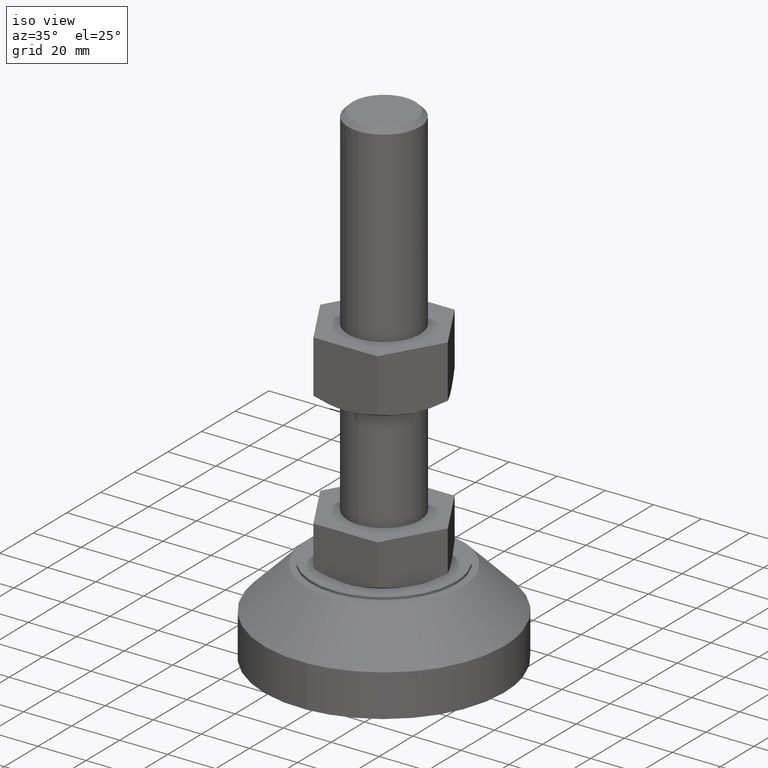
[diagram: clean part render]
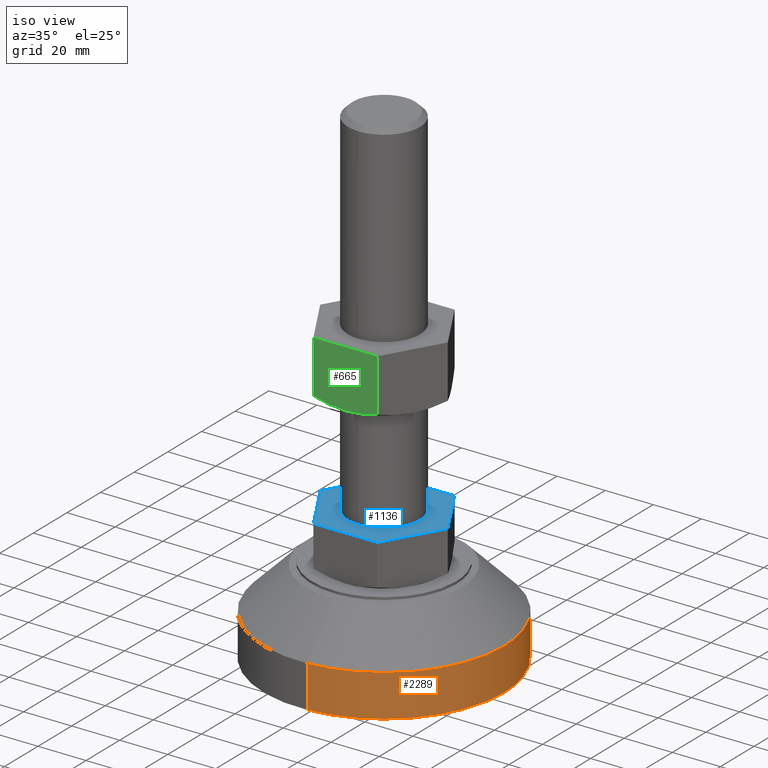
[diagram: same view with three faces highlighted in distinct colors, each labeled with its STEP entity id]
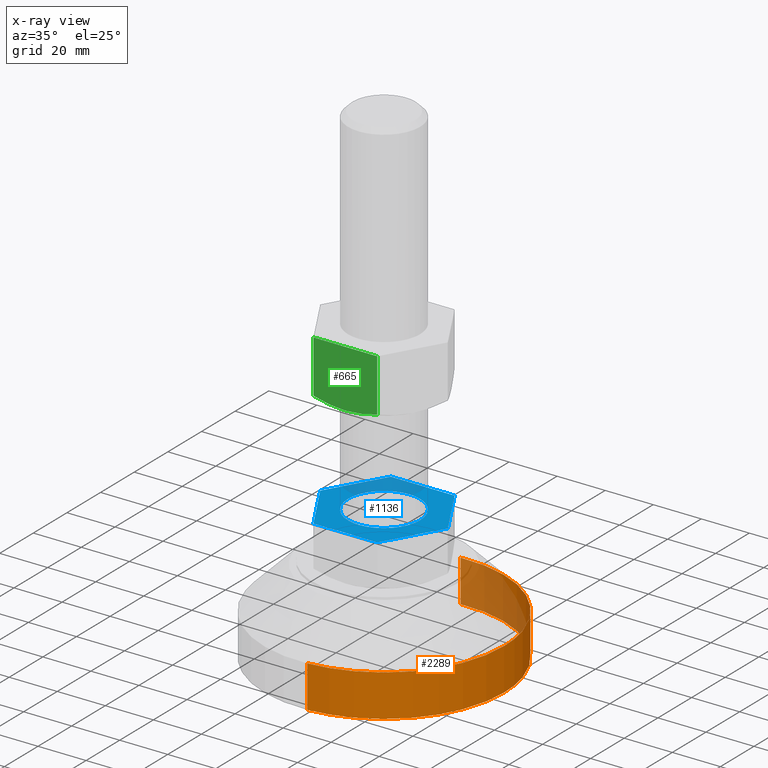
[diagram: x-ray of the same camera — body ghosted, the three highlighted faces saturated]
A machine part, iso view with three faces highlighted in distinct colors.
The next image is the same camera in x-ray (body ghosted, the three faces saturated) — at least one of them is partly hidden behind the body in this view.
Their STEP definitions:

[orange] entity #2289 — the highlighted face is a freeform B-spline surface patch.
#2119=CARTESIAN_POINT('',(-3.052395295805545,49.906741800511362,17.500000058122101));
#2120=VERTEX_POINT('',#2119);
#2128=CARTESIAN_POINT('',(3.052395295805980,-49.906741800511369,17.500000058122101));
#2129=VERTEX_POINT('',#2128);
#2135=CARTESIAN_POINT('',(50.000000000000220,0.0,17.500000000000000));
#2136=VERTEX_POINT('',#2135);
#2137=CARTESIAN_POINT('',(50.000000000000220,0.0,17.500000000000000));
#2138=CARTESIAN_POINT('',(50.000015836919260,-47.035362168745635,17.500000029061052));
#2139=CARTESIAN_POINT('',(3.052395295805980,-49.906741800511369,17.500000058122101));
#2147=(BOUNDED_CURVE()B_SPLINE_CURVE(2,(#2137,#2138,#2139),.UNSPECIFIED.,.F.,.U.)B_SPLINE_CURVE_WITH_KNOTS((3,3),(0.500000000000000,0.739333181283831),.UNSPECIFIED.)CURVE()GEOMETRIC_REPRESENTATION_ITEM()RATIONAL_B_SPLINE_CURVE((1.0,0.719603736659660,0.976072511122060))REPRESENTATION_ITEM(''));
#2148=EDGE_CURVE('',#2136,#2129,#2147,.T.);
#2150=CARTESIAN_POINT('',(-3.052395295805545,49.906741800511362,17.500000058122104));
#2151=CARTESIAN_POINT('',(-1.527637617398576,49.999998033190060,17.500000057286876));
#2152=CARTESIAN_POINT('',(-0.000030734823612,49.999998063673232,17.500000056398999));
#2153=CARTESIAN_POINT('',(49.999985102095451,49.999999061416055,17.500000027337951));
#2154=CARTESIAN_POINT('',(50.000000000000220,0.0,17.500000000000000));
#2162=(BOUNDED_CURVE()B_SPLINE_CURVE(2,(#2150,#2151,#2152,#2153,#2154),.UNSPECIFIED.,.F.,.U.)B_SPLINE_CURVE_WITH_KNOTS((3,2,3),(0.239333181283831,0.250000000000000,0.500000000000000),.UNSPECIFIED.)CURVE()GEOMETRIC_REPRESENTATION_ITEM()RATIONAL_B_SPLINE_CURVE((0.976072511122060,0.987503044526887,1.0,0.707106781186547,1.0))REPRESENTATION_ITEM(''));
#2163=EDGE_CURVE('',#2120,#2136,#2162,.T.);
#2223=CARTESIAN_POINT('',(-3.052426976742636,49.906739921093340,17.937500000000011));
#2224=CARTESIAN_POINT('',(46.854312944350710,52.959166897836191,17.937500000000004));
#2225=CARTESIAN_POINT('',(49.906739921093553,3.052426976742849,17.937500000000011));
#2226=CARTESIAN_POINT('',(52.959166897836404,-46.854312944350490,17.937500000000004));
#2227=CARTESIAN_POINT('',(3.052426976743063,-49.906739921093340,17.937500000000011));
#2228=CARTESIAN_POINT('',(-3.052426976742636,49.906739921093340,-0.448437500000058));
#2229=CARTESIAN_POINT('',(46.854312944350710,52.959166897836191,-0.448437500000058));
#2230=CARTESIAN_POINT('',(49.906739921093553,3.052426976742849,-0.448437500000058));
#2231=CARTESIAN_POINT('',(52.959166897836404,-46.854312944350490,-0.448437500000058));
#2232=CARTESIAN_POINT('',(3.052426976743063,-49.906739921093340,-0.448437500000058));
#2240=(BOUNDED_SURFACE()B_SPLINE_SURFACE(2,1,((#2223,#2228),(#2224,#2229),(#2225,#2230),(#2226,#2231),(#2227,#2232)),.UNSPECIFIED.,.F.,.F.,.U.)B_SPLINE_SURFACE_WITH_KNOTS((3,2,3),(2,2),(0.0,82.842712474619006,165.685424949238010),(0.0,18.385937500000072),.UNSPECIFIED.)GEOMETRIC_REPRESENTATION_ITEM()RATIONAL_B_SPLINE_SURFACE(((1.0,1.0),(0.707106781186548,0.707106781186548),(1.0,1.0),(0.707106781186548,0.707106781186548),(1.0,1.0)))REPRESENTATION_ITEM('')SURFACE());
#2241=ORIENTED_EDGE('',*,*,#2163,.T.);
#2242=ORIENTED_EDGE('',*,*,#2148,.T.);
#2243=CARTESIAN_POINT('',(3.052364385264898,-49.906743749273353,-5.620504E-014));
#2244=VERTEX_POINT('',#2243);
#2245=CARTESIAN_POINT('',(3.052395295805980,-49.906741800511369,17.500000058122101));
#2246=CARTESIAN_POINT('',(3.052364385264898,-49.906743749273353,-5.620504E-014));
#2247=QUASI_UNIFORM_CURVE('',1,(#2245,#2246),.UNSPECIFIED.,.F.,.U.);
#2248=EDGE_CURVE('',#2129,#2244,#2247,.T.);
#2249=ORIENTED_EDGE('',*,*,#2248,.T.);
#2250=CARTESIAN_POINT('',(50.000000000000220,0.0,0.0));
#2251=VERTEX_POINT('',#2250);
#2252=CARTESIAN_POINT('',(50.000000000000220,0.0,0.0));
#2253=CARTESIAN_POINT('',(49.999999999999034,-47.035362445741569,-2.810252E-014));
#2254=CARTESIAN_POINT('',(3.052364385264898,-49.906743749273353,-5.620504E-014));
#2262=(BOUNDED_CURVE()B_SPLINE_CURVE(2,(#2252,#2253,#2254),.UNSPECIFIED.,.F.,.U.)B_SPLINE_CURVE_WITH_KNOTS((3,3),(0.500000000000000,0.739333178644811),.UNSPECIFIED.)CURVE()GEOMETRIC_REPRESENTATION_ITEM()RATIONAL_B_SPLINE_CURVE((1.0,0.719603739751465,0.976072505466126))REPRESENTATION_ITEM(''));
#2263=EDGE_CURVE('',#2251,#2244,#2262,.T.);
#2264=ORIENTED_EDGE('',*,*,#2263,.F.);
#2265=CARTESIAN_POINT('',(-3.052364385264470,49.906743749273353,-5.620504E-014));
#2266=VERTEX_POINT('',#2265);
#2267=CARTESIAN_POINT('',(-3.052364385264470,49.906743749273353,-5.620504E-014));
#2268=CARTESIAN_POINT('',(-1.527606781440586,49.999999999961318,-5.539736E-014));
#2269=CARTESIAN_POINT('',(2.537134E-012,49.999999999961922,-5.453876E-014));
#2270=CARTESIAN_POINT('',(50.000000000001343,49.999999999981540,-2.643624E-014));
#2271=CARTESIAN_POINT('',(50.000000000000220,0.0,0.0));
#2279=(BOUNDED_CURVE()B_SPLINE_CURVE(2,(#2267,#2268,#2269,#2270,#2271),.UNSPECIFIED.,.F.,.U.)B_SPLINE_CURVE_WITH_KNOTS((3,2,3),(0.239333178644811,0.250000000000000,0.500000000000000),.UNSPECIFIED.)CURVE()GEOMETRIC_REPRESENTATION_ITEM()RATIONAL_B_SPLINE_CURVE((0.976072505466126,0.987503041435082,1.0,0.707106781186547,1.0))REPRESENTATION_ITEM(''));
#2280=EDGE_CURVE('',#2266,#2251,#2279,.T.);
#2281=ORIENTED_EDGE('',*,*,#2280,.F.);
#2282=CARTESIAN_POINT('',(-3.052395295805545,49.906741800511362,17.500000058122101));
#2283=CARTESIAN_POINT('',(-3.052364385264470,49.906743749273353,-5.620504E-014));
#2284=QUASI_UNIFORM_CURVE('',1,(#2282,#2283),.UNSPECIFIED.,.F.,.U.);
#2285=EDGE_CURVE('',#2120,#2266,#2284,.T.);
#2286=ORIENTED_EDGE('',*,*,#2285,.F.);
#2287=EDGE_LOOP('',(#2241,#2242,#2249,#2264,#2281,#2286));
#2288=FACE_OUTER_BOUND('',#2287,.T.);
#2289=ADVANCED_FACE('',(#2288),#2240,.T.);

[blue] entity #1136 — the highlighted face is a freeform B-spline surface patch.
#978=CARTESIAN_POINT('',(-0.130898032743009,-14.999428845960230,55.499999999623597));
#979=VERTEX_POINT('',#978);
#985=CARTESIAN_POINT('',(15.000000000000210,0.0,55.499999999623597));
#986=VERTEX_POINT('',#985);
#987=CARTESIAN_POINT('',(-0.130898032743014,-14.999428845960239,55.499999999623611));
#988=CARTESIAN_POINT('',(-0.065450262444127,-14.999999999999998,55.499999999623597));
#989=CARTESIAN_POINT('',(2.131628E-013,-15.0,55.499999999623597));
#990=CARTESIAN_POINT('',(15.000000000000210,-14.999999999999996,55.499999999623604));
#991=CARTESIAN_POINT('',(15.000000000000210,0.0,55.499999999623597));
#999=(BOUNDED_CURVE()B_SPLINE_CURVE(2,(#987,#988,#989,#990,#991),.UNSPECIFIED.,.F.,.U.)B_SPLINE_CURVE_WITH_KNOTS((3,2,3),(0.748460105661870,0.750000000000000,1.0),.UNSPECIFIED.)CURVE()GEOMETRIC_REPRESENTATION_ITEM()RATIONAL_B_SPLINE_CURVE((0.996414028093133,0.998195901562690,1.0,0.707106781186547,1.0))REPRESENTATION_ITEM(''));
#1000=EDGE_CURVE('',#979,#986,#999,.T.);
#1002=CARTESIAN_POINT('',(0.130898032743433,14.999428845960230,55.499999999623597));
#1003=VERTEX_POINT('',#1002);
#1004=CARTESIAN_POINT('',(15.000000000000210,0.0,55.499999999623597));
#1005=CARTESIAN_POINT('',(15.000000000000215,14.869668158659362,55.499999999623597));
#1006=CARTESIAN_POINT('',(0.130898032743433,14.999428845960235,55.499999999623597));
#1014=(BOUNDED_CURVE()B_SPLINE_CURVE(2,(#1004,#1005,#1006),.UNSPECIFIED.,.F.,.U.)B_SPLINE_CURVE_WITH_KNOTS((3,3),(0.0,0.248460105661870),.UNSPECIFIED.)CURVE()GEOMETRIC_REPRESENTATION_ITEM()RATIONAL_B_SPLINE_CURVE((1.0,0.708910879623857,0.996414028093133))REPRESENTATION_ITEM(''));
#1015=EDGE_CURVE('',#986,#1003,#1014,.T.);
#1045=CARTESIAN_POINT('',(-14.999999999999790,0.0,55.499999999623597));
#1046=VERTEX_POINT('',#1045);
#1047=CARTESIAN_POINT('',(0.130898032743433,14.999428845960235,55.499999999623597));
#1048=CARTESIAN_POINT('',(0.065450262444550,15.000000000000007,55.499999999623590));
#1049=CARTESIAN_POINT('',(2.131628E-013,15.0,55.499999999623597));
#1050=CARTESIAN_POINT('',(-14.999999999999785,14.999999999999996,55.499999999623604));
#1051=CARTESIAN_POINT('',(-14.999999999999790,0.0,55.499999999623597));
#1059=(BOUNDED_CURVE()B_SPLINE_CURVE(2,(#1047,#1048,#1049,#1050,#1051),.UNSPECIFIED.,.F.,.U.)B_SPLINE_CURVE_WITH_KNOTS((3,2,3),(0.248460105661870,0.250000000000000,0.500000000000000),.UNSPECIFIED.)CURVE()GEOMETRIC_REPRESENTATION_ITEM()RATIONAL_B_SPLINE_CURVE((0.996414028093133,0.998195901562690,1.0,0.707106781186547,1.0))REPRESENTATION_ITEM(''));
#1060=EDGE_CURVE('',#1003,#1046,#1059,.T.);
#1062=CARTESIAN_POINT('',(-14.999999999999790,0.0,55.499999999623597));
#1063=CARTESIAN_POINT('',(-14.999999999999789,-14.869668158659360,55.499999999623590));
#1064=CARTESIAN_POINT('',(-0.130898032743014,-14.999428845960239,55.499999999623611));
#1072=(BOUNDED_CURVE()B_SPLINE_CURVE(2,(#1062,#1063,#1064),.UNSPECIFIED.,.F.,.U.)B_SPLINE_CURVE_WITH_KNOTS((3,3),(0.500000000000000,0.748460105661870),.UNSPECIFIED.)CURVE()GEOMETRIC_REPRESENTATION_ITEM()RATIONAL_B_SPLINE_CURVE((1.0,0.708910879623857,0.996414028093133))REPRESENTATION_ITEM(''));
#1073=EDGE_CURVE('',#1046,#979,#1072,.T.);
#1081=CARTESIAN_POINT('',(-29.211267706806979,-25.297699910843090,55.499999999623597));
#1082=CARTESIAN_POINT('',(29.211269131496149,-25.297699910843090,55.499999999623597));
#1083=CARTESIAN_POINT('',(-29.211267706806979,25.297701144659591,55.499999999623597));
#1084=CARTESIAN_POINT('',(29.211269131496149,25.297701144659591,55.499999999623597));
#1085=B_SPLINE_SURFACE_WITH_KNOTS('',1,1,((#1081,#1083),(#1082,#1084)),.UNSPECIFIED.,.F.,.F.,.U.,(2,2),(2,2),(0.0,58.422536838303117),(0.0,50.595401055502677),.UNSPECIFIED.);
#1086=CARTESIAN_POINT('',(13.279056191361621,23.000000000000352,55.499999999623597));
#1087=VERTEX_POINT('',#1086);
#1088=CARTESIAN_POINT('',(26.558112382723500,1.136868E-013,55.499999999623597));
#1089=VERTEX_POINT('',#1088);
#1090=CARTESIAN_POINT('',(13.279056191361621,23.000000000000352,55.499999999623597));
#1091=CARTESIAN_POINT('',(26.558112382723500,1.136868E-013,55.499999999623597));
#1092=QUASI_UNIFORM_CURVE('',1,(#1090,#1091),.UNSPECIFIED.,.F.,.U.);
#1093=EDGE_CURVE('',#1087,#1089,#1092,.T.);
#1094=ORIENTED_EDGE('',*,*,#1093,.F.);
#1095=CARTESIAN_POINT('',(-13.279056191360841,23.000000000000352,55.499999999623597));
#1096=VERTEX_POINT('',#1095);
#1097=CARTESIAN_POINT('',(-13.279056191360841,23.000000000000352,55.499999999623597));
#1098=CARTESIAN_POINT('',(13.279056191361621,23.000000000000352,55.499999999623597));
#1099=QUASI_UNIFORM_CURVE('',1,(#1097,#1098),.UNSPECIFIED.,.F.,.U.);
#1100=EDGE_CURVE('',#1096,#1087,#1099,.T.);
#1101=ORIENTED_EDGE('',*,*,#1100,.F.);
#1102=CARTESIAN_POINT('',(-26.558112382722499,1.136868E-013,55.499999999623597));
#1103=VERTEX_POINT('',#1102);
#1104=CARTESIAN_POINT('',(-26.558112382722499,1.136868E-013,55.499999999623597));
#1105=CARTESIAN_POINT('',(-13.279056191360841,23.000000000000352,55.499999999623597));
#1106=QUASI_UNIFORM_CURVE('',1,(#1104,#1105),.UNSPECIFIED.,.F.,.U.);
#1107=EDGE_CURVE('',#1103,#1096,#1106,.T.);
#1108=ORIENTED_EDGE('',*,*,#1107,.F.);
#1109=CARTESIAN_POINT('',(-13.279056191361301,-22.999999999999702,55.499999999623597));
#1110=VERTEX_POINT('',#1109);
#1111=CARTESIAN_POINT('',(-13.279056191361301,-22.999999999999702,55.499999999623597));
#1112=CARTESIAN_POINT('',(-26.558112382722499,1.136868E-013,55.499999999623597));
#1113=QUASI_UNIFORM_CURVE('',1,(#1111,#1112),.UNSPECIFIED.,.F.,.U.);
#1114=EDGE_CURVE('',#1110,#1103,#1113,.T.);
#1115=ORIENTED_EDGE('',*,*,#1114,.F.);
#1116=CARTESIAN_POINT('',(13.279056191361960,-23.0,55.499999999623597));
#1117=VERTEX_POINT('',#1116);
#1118=CARTESIAN_POINT('',(13.279056191361960,-23.0,55.499999999623597));
#1119=CARTESIAN_POINT('',(-13.279056191361301,-22.999999999999702,55.499999999623597));
#1120=QUASI_UNIFORM_CURVE('',1,(#1118,#1119),.UNSPECIFIED.,.F.,.U.);
#1121=EDGE_CURVE('',#1117,#1110,#1120,.T.);
#1122=ORIENTED_EDGE('',*,*,#1121,.F.);
#1123=CARTESIAN_POINT('',(26.558112382723500,1.136868E-013,55.499999999623597));
#1124=CARTESIAN_POINT('',(13.279056191361960,-23.0,55.499999999623597));
#1125=QUASI_UNIFORM_CURVE('',1,(#1123,#1124),.UNSPECIFIED.,.F.,.U.);
#1126=EDGE_CURVE('',#1089,#1117,#1125,.T.);
#1127=ORIENTED_EDGE('',*,*,#1126,.F.);
#1128=EDGE_LOOP('',(#1094,#1101,#1108,#1115,#1122,#1127));
#1129=FACE_OUTER_BOUND('',#1128,.T.);
#1130=ORIENTED_EDGE('',*,*,#1073,.F.);
#1131=ORIENTED_EDGE('',*,*,#1060,.F.);
#1132=ORIENTED_EDGE('',*,*,#1015,.F.);
#1133=ORIENTED_EDGE('',*,*,#1000,.F.);
#1134=EDGE_LOOP('',(#1130,#1131,#1132,#1133));
#1135=FACE_BOUND('',#1134,.T.);
#1136=ADVANCED_FACE('',(#1129,#1135),#1085,.T.);

[green] entity #665 — the highlighted face is a freeform B-spline surface patch.
#194=CARTESIAN_POINT('',(2.042810E-013,-23.000000000623249,101.500000000000000));
#195=VERTEX_POINT('',#194);
#306=CARTESIAN_POINT('',(-13.279056191222020,-23.000000000000501,103.554277141584390));
#307=VERTEX_POINT('',#306);
#308=CARTESIAN_POINT('',(-13.279056191222020,-23.000000000000501,103.554277141584390));
#309=CARTESIAN_POINT('',(-12.198869944399000,-22.999999999999702,103.242454231395600));
#310=CARTESIAN_POINT('',(-11.108759384254411,-22.999999999999702,102.956187111477900));
#311=CARTESIAN_POINT('',(-9.454778101003612,-22.999999999999702,102.575237493196600));
#312=CARTESIAN_POINT('',(-8.902316039079517,-22.999999999999691,102.456826715605000));
#313=CARTESIAN_POINT('',(-7.796433117022255,-22.999999999999702,102.238958705090890));
#314=CARTESIAN_POINT('',(-7.242781216517976,-22.999999999999691,102.139450308916390));
#315=CARTESIAN_POINT('',(-5.579535230770669,-22.999999999999691,101.871310993675710));
#316=CARTESIAN_POINT('',(-4.467642062740147,-22.999999999999691,101.733182680877900));
#317=CARTESIAN_POINT('',(-2.238358477964196,-22.999999999999691,101.547547692235100));
#318=CARTESIAN_POINT('',(-1.120971110900386,-22.999999999999702,101.500000555368500));
#319=CARTESIAN_POINT('',(4.465048E-011,-22.999999999999702,101.500000000630910));
#320=B_SPLINE_CURVE_WITH_KNOTS('',3,(#308,#309,#310,#311,#312,#313,#314,#315,#316,#317,#318,#319),.UNSPECIFIED.,.F.,.U.,(4,2,2,2,2,4),(0.0,0.125000000000000,0.187500000000000,0.250000000000000,0.375000000000000,0.499851510291382),.UNSPECIFIED.);
#321=EDGE_CURVE('',#307,#195,#320,.T.);
#355=CARTESIAN_POINT('',(13.279056191361841,-22.999999999999702,103.554277141584390));
#356=VERTEX_POINT('',#355);
#357=CARTESIAN_POINT('',(2.042810E-013,-23.000000000623249,101.500000000000000));
#358=CARTESIAN_POINT('',(0.001333205721319,-22.999999999999702,101.499999999971100));
#359=CARTESIAN_POINT('',(0.002666415642708,-22.999999999999702,101.500000066566300));
#360=CARTESIAN_POINT('',(1.126312481604743,-22.999999999999702,101.500112880034810));
#361=CARTESIAN_POINT('',(2.252219217239045,-22.999999999999702,101.547906682508990));
#362=CARTESIAN_POINT('',(3.664036735894839,-22.999999999999691,101.666477430222800));
#363=CARTESIAN_POINT('',(3.946488721869175,-22.999999999999691,101.693114944901790));
#364=CARTESIAN_POINT('',(4.509252360616516,-22.999999999999709,101.751856182336500));
#365=CARTESIAN_POINT('',(5.351149180366557,-22.999999999999691,101.848242223912390));
#366=CARTESIAN_POINT('',(6.186543639419772,-22.999999999999702,101.968554628567600));
#367=CARTESIAN_POINT('',(7.849348172585478,-22.999999999999691,102.238559120421400));
#368=CARTESIAN_POINT('',(8.947244764162546,-22.999999999999709,102.457712642810090));
#369=CARTESIAN_POINT('',(11.125465257919579,-22.999999999999702,102.960680903166900));
#370=CARTESIAN_POINT('',(12.205800248984540,-22.999999999999702,103.244454838002200));
#371=CARTESIAN_POINT('',(13.279056191351780,-22.999999999999702,103.554277141621400));
#372=B_SPLINE_CURVE_WITH_KNOTS('',3,(#357,#358,#359,#360,#361,#362,#363,#364,#365,#366,#367,#368,#369,#370,#371),.UNSPECIFIED.,.F.,.U.,(4,2,2,2,1,2,2,4),(0.499851510321993,0.500000000000000,0.625000000000000,0.656250000000000,0.687500000000000,0.750000000000000,0.875000000000000,1.0),.UNSPECIFIED.);
#373=EDGE_CURVE('',#195,#356,#372,.T.);
#594=CARTESIAN_POINT('',(13.279056191361841,-22.999999999999702,125.500000000000000));
#595=VERTEX_POINT('',#594);
#624=CARTESIAN_POINT('',(-13.279056191361301,-22.999999999999599,125.500000000000000));
#625=VERTEX_POINT('',#624);
#631=CARTESIAN_POINT('',(-13.279056191361301,-22.999999999999599,125.500000000000000));
#632=CARTESIAN_POINT('',(13.279056191361841,-22.999999999999702,125.500000000000000));
#633=QUASI_UNIFORM_CURVE('',1,(#631,#632),.UNSPECIFIED.,.F.,.U.);
#634=EDGE_CURVE('',#625,#595,#633,.T.);
#645=CARTESIAN_POINT('',(-14.605633853403541,-22.999999999999702,126.698799953483400));
#646=CARTESIAN_POINT('',(-14.605633853403541,-22.999999999999702,100.301199402786490));
#647=CARTESIAN_POINT('',(14.605634565748170,-22.999999999999702,126.698799953483400));
#648=CARTESIAN_POINT('',(14.605634565748170,-22.999999999999702,100.301199402786490));
#649=B_SPLINE_SURFACE_WITH_KNOTS('',1,1,((#645,#647),(#646,#648)),.UNSPECIFIED.,.F.,.F.,.U.,(2,2),(2,2),(0.0,26.397600550696868),(0.0,29.211268419151718),.UNSPECIFIED.);
#650=CARTESIAN_POINT('',(-13.279056191222020,-23.000000000000501,103.554277141584390));
#651=CARTESIAN_POINT('',(-13.279056191361301,-22.999999999999599,125.500000000000000));
#652=QUASI_UNIFORM_CURVE('',1,(#650,#651),.UNSPECIFIED.,.F.,.U.);
#653=EDGE_CURVE('',#307,#625,#652,.T.);
#654=ORIENTED_EDGE('',*,*,#653,.F.);
#655=ORIENTED_EDGE('',*,*,#321,.T.);
#656=ORIENTED_EDGE('',*,*,#373,.T.);
#657=CARTESIAN_POINT('',(13.279056191361841,-22.999999999999702,103.554277141584390));
#658=CARTESIAN_POINT('',(13.279056191361841,-22.999999999999702,125.500000000000000));
#659=QUASI_UNIFORM_CURVE('',1,(#657,#658),.UNSPECIFIED.,.F.,.U.);
#660=EDGE_CURVE('',#356,#595,#659,.T.);
#661=ORIENTED_EDGE('',*,*,#660,.T.);
#662=ORIENTED_EDGE('',*,*,#634,.F.);
#663=EDGE_LOOP('',(#654,#655,#656,#661,#662));
#664=FACE_OUTER_BOUND('',#663,.T.);
#665=ADVANCED_FACE('',(#664),#649,.T.);